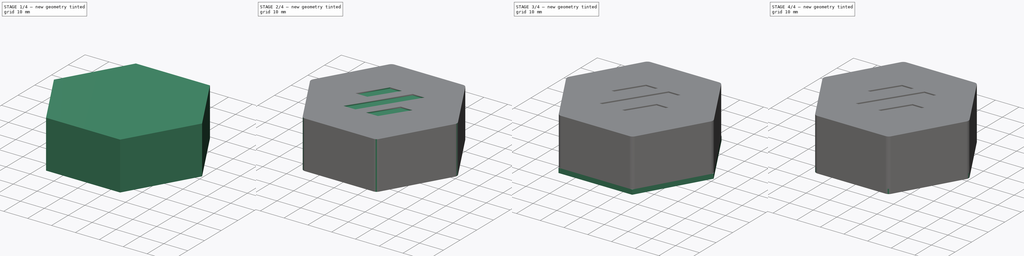
[diagram: build sequence overview — one tinted view per stage of 4, left to right]
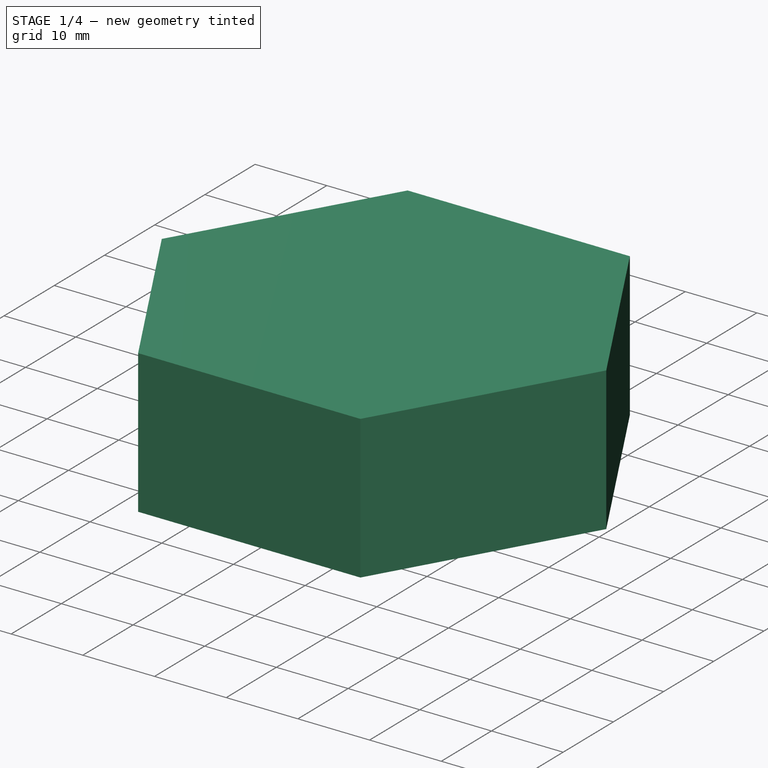
[diagram: stage 1 of 4 — iso view after this stage's code; geometry added in this stage tinted green]
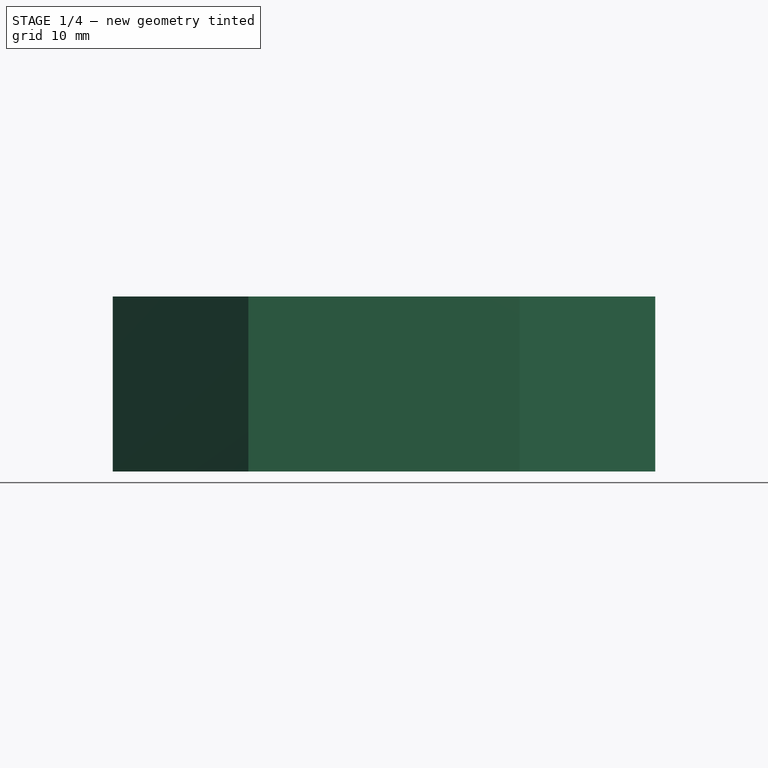
[diagram: stage 1 of 4 — front view after this stage's code; geometry added in this stage tinted green]
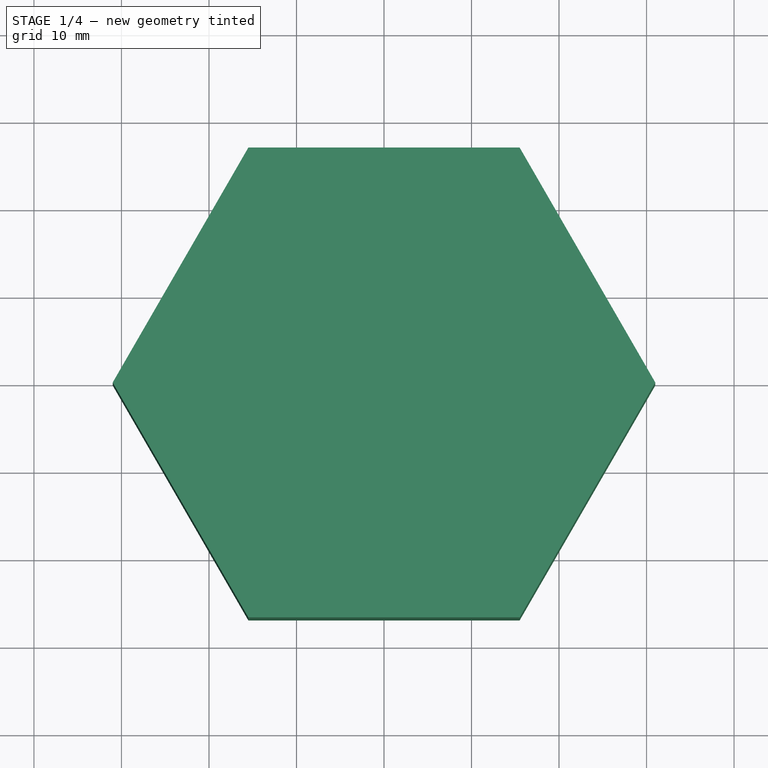
[diagram: stage 1 of 4 — top view after this stage's code; geometry added in this stage tinted green]
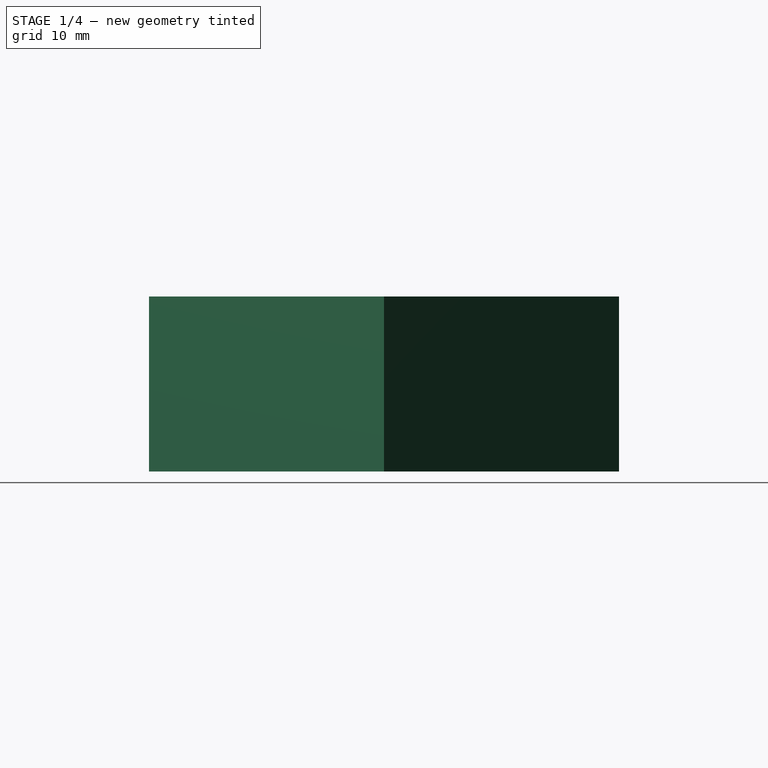
[diagram: stage 1 of 4 — right view after this stage's code; geometry added in this stage tinted green]
FCSTD DOCUMENT  (FreeCAD 0.19R24291 (Git))
Label: nozzlebox
License: All rights reserved
LicenseURL: http://en.wikipedia.org/wiki/All_rights_reserved
objects: Sketcher::SketchObject×9, PartDesign::Pad×5, PartDesign::Pocket×4, PartDesign::Fillet×2, PartDesign::Body×2, PartDesign::PolarPattern×1, PartDesign::Chamfer×1
note: 36 computed .brp shape members not serialized (recipe doc carries the construction recipe); baked Part::Feature solids carry a one-line shape summary decoded from their .brp

FEATURE [Sketcher::SketchObject] Sketch003
  AttachmentOffset = pos=(0,0,2) rot=(0,0,1;0rad)
  FullyConstrained = true
  MapMode = 5
  Placement = pos=(0,0,2) rot=(0,0,1;0rad)
  Support = -> [XY_Plane001]
  sketch-geometry (14):
    g0: LineSegment StartX=31 StartY=0 StartZ=0 EndX=15.5 EndY=26.8468 EndZ=0
    g1: LineSegment StartX=15.5 StartY=26.8468 StartZ=0 EndX=-15.5 EndY=26.8468 EndZ=0
    g2: LineSegment StartX=-15.5 StartY=26.8468 StartZ=0 EndX=-31 EndY=-3.6e-15 EndZ=0
    g3: LineSegment StartX=-31 StartY=-3.6e-15 StartZ=0 EndX=-15.5 EndY=-26.8468 EndZ=0
    g4: LineSegment StartX=-15.5 StartY=-26.8468 StartZ=0 EndX=15.5 EndY=-26.8468 EndZ=0
    g5: LineSegment StartX=15.5 StartY=-26.8468 StartZ=0 EndX=31 EndY=0 EndZ=0
    g6: Circle CenterX=0 CenterY=0 CenterZ=0 NormalX=0 NormalY=0 NormalZ=1 AngleXU=0 Radius=31
    g7: LineSegment StartX=29.15 StartY=0 StartZ=0 EndX=14.575 EndY=25.2446 EndZ=0
    g8: LineSegment StartX=14.575 StartY=25.2446 StartZ=0 EndX=-14.575 EndY=25.2446 EndZ=0
    g9: LineSegment StartX=-14.575 StartY=25.2446 StartZ=0 EndX=-29.15 EndY=3.6e-15 EndZ=0
    g10: LineSegment StartX=-29.15 StartY=3.6e-15 StartZ=0 EndX=-14.575 EndY=-25.2446 EndZ=0
    g11: LineSegment StartX=-14.575 StartY=-25.2446 StartZ=0 EndX=14.575 EndY=-25.2446 EndZ=0
    g12: LineSegment StartX=14.575 StartY=-25.2446 StartZ=0 EndX=29.15 EndY=0 EndZ=0
    g13: Circle CenterX=0 CenterY=0 CenterZ=0 NormalX=0 NormalY=0 NormalZ=1 AngleXU=0 Radius=29.15
  constraints (32):
    c: Coincident(g0,g1)
    c: Coincident(g1,g2)
    c: Coincident(g2,g3)
    c: Coincident(g3,g4)
    c: Coincident(g4,g5)
    c: Coincident(g5,g0)
    c: Equal(g0, g1-g5) x5
    c: PointOnObject(g0,g6)
    c: PointOnObject(g1,g6)
    c: PointOnObject(g2,g6)
    c: PointOnObject(g3,g6)
    c: PointOnObject(g4,g6)
    c: PointOnObject(g5,g6)
    c: Coincident(g6,g-1)
    c: PointOnObject(g5,g-1)
    c: DistanceX(g2,g0) = 62
    c: Coincident(g7,g8)
    c: Coincident(g8,g9)
    c: Coincident(g9,g10)
    c: Coincident(g10,g11)
    c: Coincident(g11,g12)
    c: Coincident(g12,g7)
    c: Equal(g7, g8-g12) x5
    c: PointOnObject(g7,g13)
    c: PointOnObject(g8,g13)
    c: PointOnObject(g9,g13)
    c: PointOnObject(g10,g13)
    c: PointOnObject(g11,g13)
    c: PointOnObject(g12,g13)
    c: Coincident(g13,g-1)
    c: PointOnObject(g12,g-1)
    c: DistanceX(g9,g7) = 58.3
FEATURE [PartDesign::Pad] Pad002
  Direction = (1,1,1)
  Length = 20
  Length2 = 100
  Profile = -> Sketch003
  Type = 0
FEATURE [Sketcher::SketchObject] Sketch004
  AttachmentOffset = pos=(0,0,18) rot=(0,0,1;0rad)
  FullyConstrained = true
  MapMode = 5
  Placement = pos=(0,0,18) rot=(0,0,1;0rad)
  Support = -> [XY_Plane001]
  sketch-geometry (7):
    g0: LineSegment StartX=29.15 StartY=0 StartZ=0 EndX=14.575 EndY=25.2446 EndZ=0
    g1: LineSegment StartX=14.575 StartY=25.2446 StartZ=0 EndX=-14.575 EndY=25.2446 EndZ=0
    g2: LineSegment StartX=-14.575 StartY=25.2446 StartZ=0 EndX=-29.15 EndY=0 EndZ=0
    g3: LineSegment StartX=-29.15 StartY=0 StartZ=0 EndX=-14.575 EndY=-25.2446 EndZ=0
    g4: LineSegment StartX=-14.575 StartY=-25.2446 StartZ=0 EndX=14.575 EndY=-25.2446 EndZ=0
    g5: LineSegment StartX=14.575 StartY=-25.2446 StartZ=0 EndX=29.15 EndY=0 EndZ=0
    g6: Circle CenterX=0 CenterY=0 CenterZ=0 NormalX=0 NormalY=0 NormalZ=1 AngleXU=0 Radius=29.15
  constraints (16):
    c: Coincident(g0,g1)
    c: Coincident(g1,g2)
    c: Coincident(g2,g3)
    c: Coincident(g3,g4)
    c: Coincident(g4,g5)
    c: Coincident(g5,g0)
    c: Equal(g0, g1-g5) x5
    c: PointOnObject(g0,g6)
    c: PointOnObject(g1,g6)
    c: PointOnObject(g2,g6)
    c: PointOnObject(g3,g6)
    c: PointOnObject(g4,g6)
    c: PointOnObject(g5,g6)
    c: Coincident(g6,g-1)
    c: PointOnObject(g5,g-1)
    c: DistanceX(g2,g0) = 58.3
FEATURE [PartDesign::Pad] Pad003
  BaseFeature = -> Pad002
  Direction = (1,1,1)
  Length = 4
  Length2 = 100
  Profile = -> Sketch004
  Refine = true
  Type = 0
FEATURE [PartDesign::Body] Body  label="Bottom"
  Group = -> [Sketch,Pad,Sketch001,Pad001,Sketch002,Pocket,Sketch005,Pocket001,PolarPattern,Fillet,Chamfer]
  Origin = -> Origin
  Tip = -> Chamfer
FEATURE [Sketcher::SketchObject] Sketch006
  AttachmentOffset = pos=(0,0,12) rot=(0,0,1;0rad)
  FullyConstrained = true
  MapMode = 5
  Placement = pos=(0,0,12) rot=(0,0,1;0rad)
  Support = -> [XY_Plane001]
  sketch-geometry (1):
    g0: Circle CenterX=0 CenterY=0 CenterZ=0 NormalX=0 NormalY=0 NormalZ=1 AngleXU=0 Radius=3.1
  constraints (2):
    c: Coincident(g0,g-1)
    c: Diameter(g0) = 6.2
FEATURE [Sketcher::SketchObject] Sketch007
  AttachmentOffset = pos=(0,0,12) rot=(0,0,1;0rad)
  FullyConstrained = true
  MapMode = 5
  Placement = pos=(0,0,12) rot=(0,0,1;0rad)
  Support = -> [XY_Plane001]
  sketch-geometry (1):
    g0: Circle CenterX=0 CenterY=0 CenterZ=0 NormalX=0 NormalY=0 NormalZ=1 AngleXU=0 Radius=4.3
  constraints (2):
    c: Coincident(g0,g-1)
    c: Diameter(g0) = 8.6
FEATURE [PartDesign::Pad] Pad004
  BaseFeature = -> Pad003
  Direction = (1,1,1)
  Length = 6
  Length2 = 100
  Profile = -> Sketch007
  Type = 0
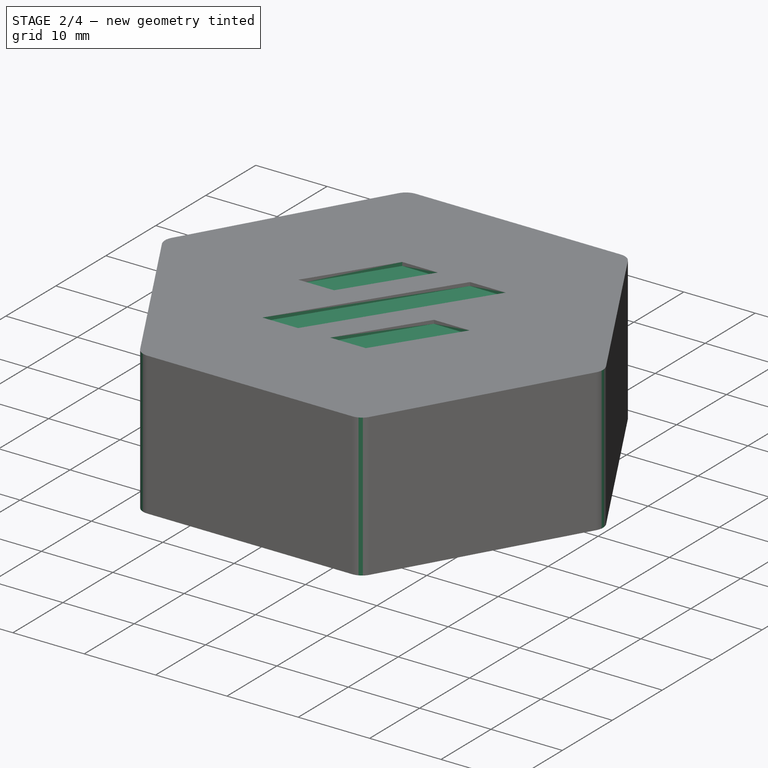
[diagram: stage 2 of 4 — iso view after this stage's code; geometry added in this stage tinted green]
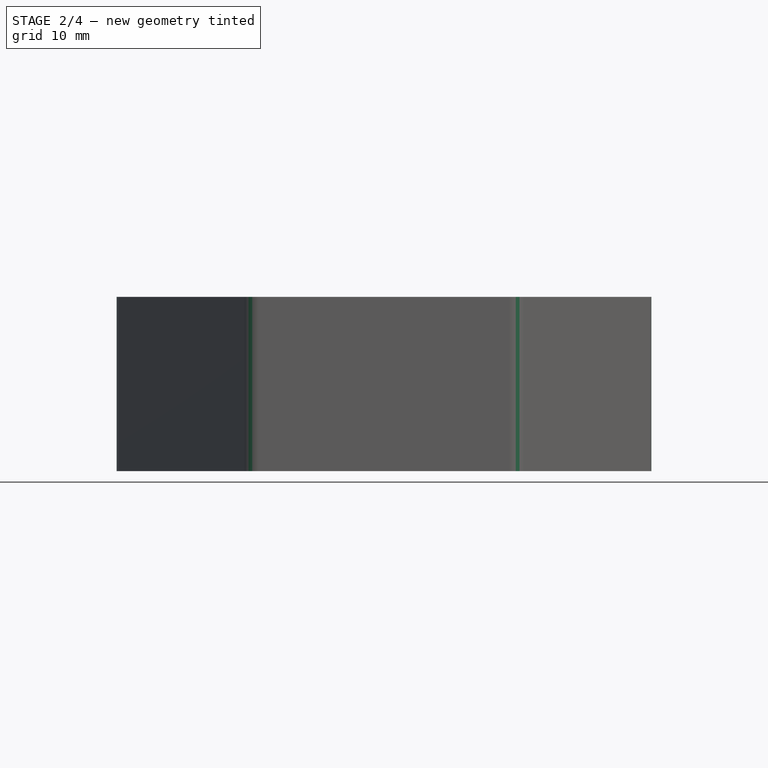
[diagram: stage 2 of 4 — front view after this stage's code; geometry added in this stage tinted green]
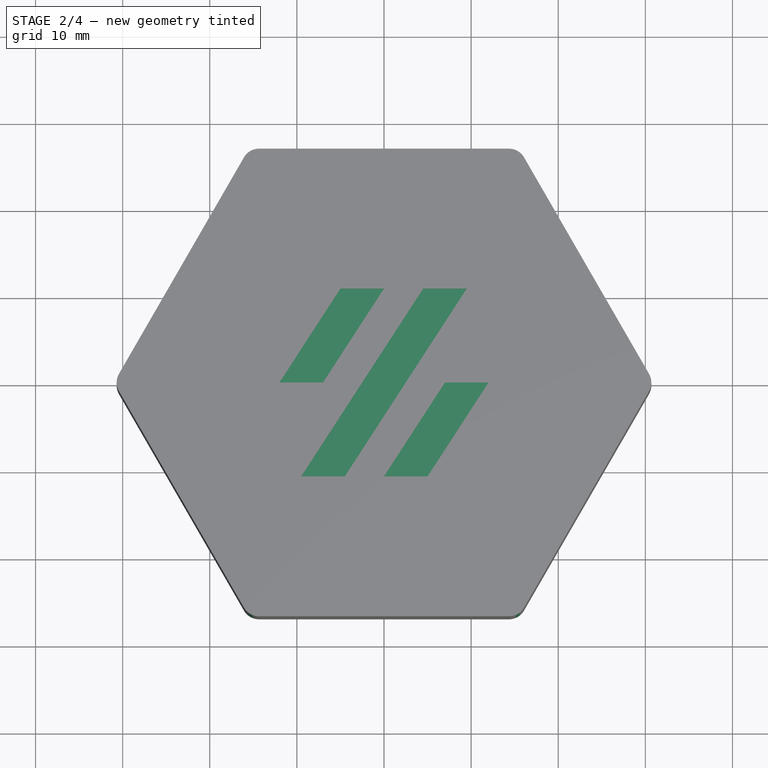
[diagram: stage 2 of 4 — top view after this stage's code; geometry added in this stage tinted green]
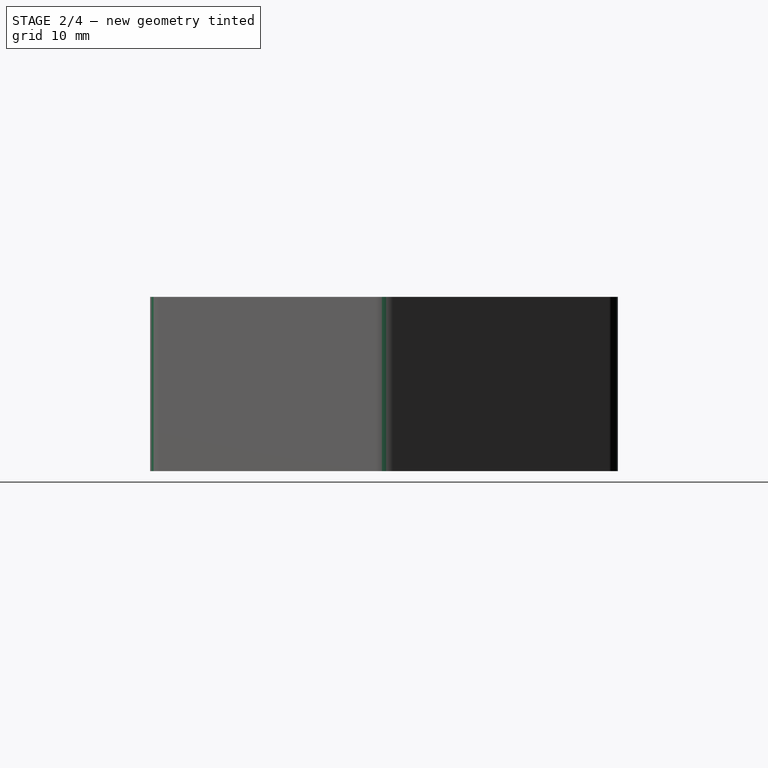
[diagram: stage 2 of 4 — right view after this stage's code; geometry added in this stage tinted green]
FEATURE [PartDesign::Pocket] Pocket002
  BaseFeature = -> Pad004
  Length = 3
  Length2 = 100
  Profile = -> Sketch006
  Reversed = true
  Type = 0
FEATURE [PartDesign::Fillet] Fillet001
  Base = -> Pocket002 [Edge8,Edge2,Edge1,Edge24,Edge5,Edge23]
  BaseFeature = -> Pocket002
  Radius = 2
  SupportTransform = false
FEATURE [Sketcher::SketchObject] Sketch008
  FullyConstrained = false
  MapMode = 5
  Placement = pos=(0,0,22) rot=(0,0,1;0rad)
  Support = -> [Fillet001]
  sketch-geometry (16):
    g0: LineSegment StartX=-12 StartY=0 StartZ=0 EndX=-5 EndY=10.7834 EndZ=0
    g1: LineSegment StartX=-5 StartY=10.7834 StartZ=0 EndX=0 EndY=10.7834 EndZ=0
    g2: LineSegment StartX=0 StartY=10.7834 StartZ=0 EndX=-7 EndY=0 EndZ=0
    g3: LineSegment StartX=-12 StartY=0 StartZ=0 EndX=-7 EndY=0 EndZ=0
    g4: LineSegment StartX=4.5 StartY=10.7834 StartZ=0 EndX=-9.5 EndY=-10.7834 EndZ=0
    g5: LineSegment StartX=-9.5 StartY=-10.7834 StartZ=0 EndX=-4.5 EndY=-10.7834 EndZ=0
    g6: LineSegment StartX=-4.5 StartY=-10.7834 StartZ=0 EndX=9.5 EndY=10.7834 EndZ=0
    g7: LineSegment StartX=4.5 StartY=10.7834 StartZ=0 EndX=9.5 EndY=10.7834 EndZ=0
    g8: LineSegment StartX=7 StartY=0 StartZ=0 EndX=12 EndY=0 EndZ=0
    g9: LineSegment StartX=12 StartY=0 StartZ=0 EndX=5 EndY=-10.7834 EndZ=0
    g10: LineSegment StartX=5 StartY=-10.7834 StartZ=0 EndX=9e-16 EndY=-10.7834 EndZ=0
    g11: LineSegment StartX=7 StartY=0 StartZ=0 EndX=9e-16 EndY=-10.7834 EndZ=0
    g12: LineSegment StartX=0 StartY=10.7834 StartZ=0 EndX=4.5 EndY=10.7834 EndZ=0
    g13: LineSegment StartX=9e-16 StartY=-10.7834 StartZ=0 EndX=-4.5 EndY=-10.7834 EndZ=0
    g14: LineSegment StartX=-7 StartY=0 StartZ=0 EndX=9e-16 EndY=-10.7834 EndZ=0
    g15: LineSegment StartX=7 StartY=0 StartZ=0 EndX=0 EndY=10.7834 EndZ=0
  constraints (43):
    c: Coincident(g1,g0)
    c: Horizontal(g1)
    c: Coincident(g2,g1)
    c: Coincident(g3,g0)
    c: Coincident(g3,g2)
    c: Coincident(g5,g4)
    c: Horizontal(g5)
    c: Coincident(g6,g5)
    c: Coincident(g7,g4)
    c: Coincident(g7,g6)
    c: Horizontal(g7)
    c: Horizontal(g8)
    c: Coincident(g9,g8)
    c: Coincident(g10,g9)
    c: Coincident(g11,g8)
    c: Coincident(g11,g10)
    c: Equal(g1,g7)
    c: Equal(g7,g8)
    c: Equal(g3,g5)
    c: Equal(g5,g10)
    c: Horizontal(g10)
    c: Equal(g8,g10)
    c: Horizontal(g1,g4)
    c: Horizontal(g5,g10)
    c: Coincident(g12,g1)
    c: Coincident(g12,g4)
    c: Coincident(g13,g10)
    c: Coincident(g13,g5)
    c: Equal(g12,g13)
    c: Parallel(g2,g4)
    c: Parallel(g6,g11)
    c: Horizontal(g2,g8)
    c: Horizontal(g3)
    c: Coincident(g14,g2)
    c: Coincident(g14,g10)
    c: Coincident(g15,g8)
    c: Coincident(g15,g1)
    c: Equal(g15,g14)
    c: DistanceX(g1,g1) = 5
    c: PointOnObject(g2,g-1)
    c: PointOnObject(g1,g-2)
    c: PointOnObject(g10,g-2)
    c: DistanceX(g12,g12) = 4.5
FEATURE [PartDesign::Pocket] Pocket003
  BaseFeature = -> Fillet001
  Length = 0.5
  Length2 = 100
  Profile = -> Sketch008
  Type = 0
FEATURE [PartDesign::Body] Body001  label="Top"
  Group = -> [Sketch003,Pad002,Sketch004,Pad003,Sketch007,Pad004,Sketch006,Pocket002,Fillet001,Sketch008,Pocket003]
  Origin = -> Origin001
  Tip = -> Pocket003
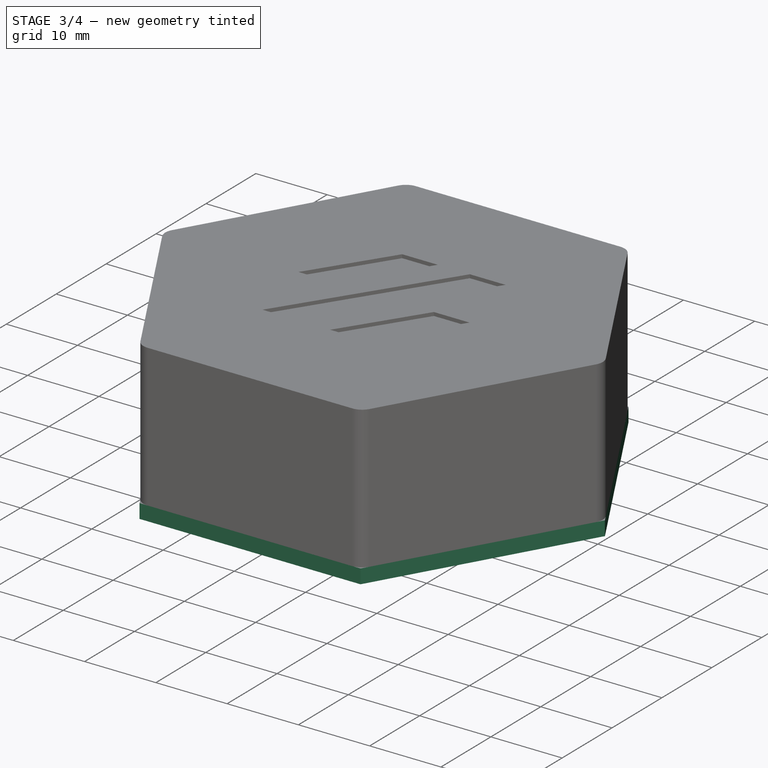
[diagram: stage 3 of 4 — iso view after this stage's code; geometry added in this stage tinted green]
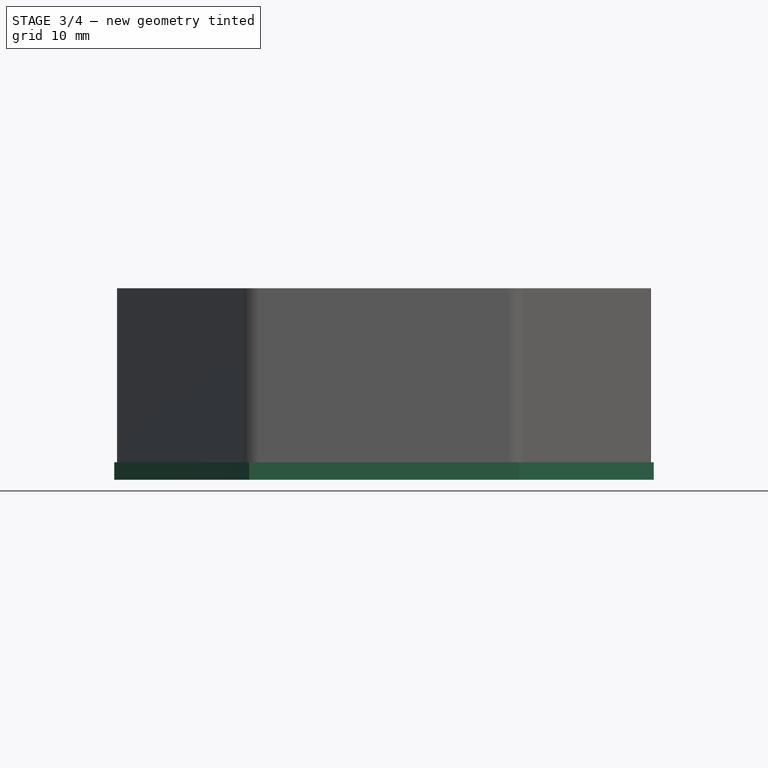
[diagram: stage 3 of 4 — front view after this stage's code; geometry added in this stage tinted green]
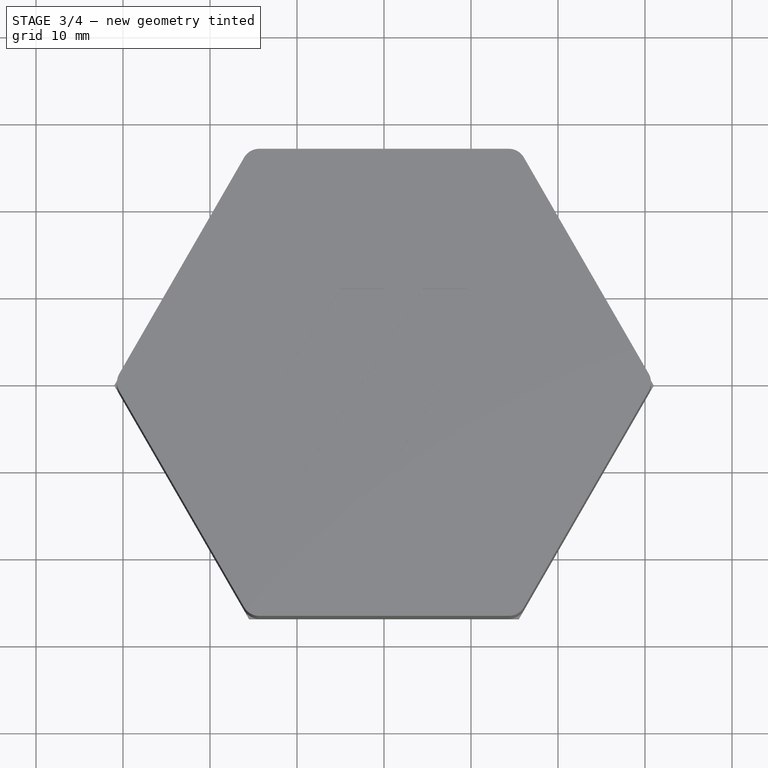
[diagram: stage 3 of 4 — top view after this stage's code; geometry added in this stage tinted green]
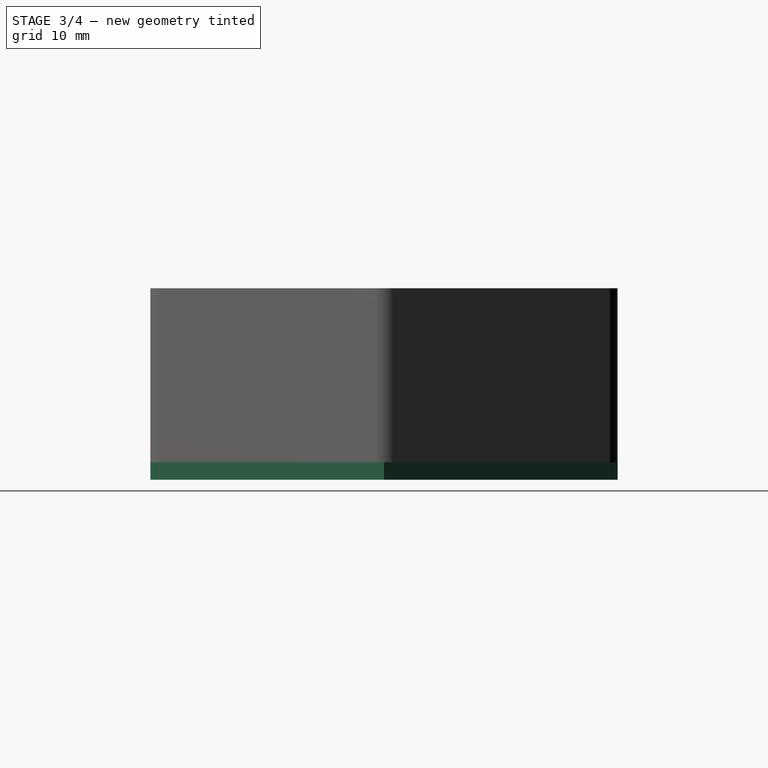
[diagram: stage 3 of 4 — right view after this stage's code; geometry added in this stage tinted green]
FEATURE [Sketcher::SketchObject] Sketch
  FullyConstrained = true
  MapMode = 5
  Support = -> [XY_Plane]
  sketch-geometry (7):
    g0: LineSegment StartX=31 StartY=0 StartZ=0 EndX=15.5 EndY=26.8468 EndZ=0
    g1: LineSegment StartX=15.5 StartY=26.8468 StartZ=0 EndX=-15.5 EndY=26.8468 EndZ=0
    g2: LineSegment StartX=-15.5 StartY=26.8468 StartZ=0 EndX=-31 EndY=0 EndZ=0
    g3: LineSegment StartX=-31 StartY=0 StartZ=0 EndX=-15.5 EndY=-26.8468 EndZ=0
    g4: LineSegment StartX=-15.5 StartY=-26.8468 StartZ=0 EndX=15.5 EndY=-26.8468 EndZ=0
    g5: LineSegment StartX=15.5 StartY=-26.8468 StartZ=0 EndX=31 EndY=0 EndZ=0
    g6: Circle CenterX=0 CenterY=0 CenterZ=0 NormalX=0 NormalY=0 NormalZ=1 AngleXU=0 Radius=31
  constraints (16):
    c: Coincident(g0,g1)
    c: Coincident(g1,g2)
    c: Coincident(g2,g3)
    c: Coincident(g3,g4)
    c: Coincident(g4,g5)
    c: Coincident(g5,g0)
    c: Equal(g0, g1-g5) x5
    c: PointOnObject(g0,g6)
    c: PointOnObject(g1,g6)
    c: PointOnObject(g2,g6)
    c: PointOnObject(g3,g6)
    c: PointOnObject(g4,g6)
    c: PointOnObject(g5,g6)
    c: Coincident(g6,g-1)
    c: PointOnObject(g5,g-1)
    c: DistanceX(g2,g0) = 62
FEATURE [PartDesign::Pad] Pad
  Direction = (1,1,1)
  Length = 2
  Length2 = 100
  Profile = -> Sketch
  Type = 0
FEATURE [Sketcher::SketchObject] Sketch001
  FullyConstrained = true
  MapMode = 5
  Support = -> [XY_Plane]
  sketch-geometry (7):
    g0: LineSegment StartX=29 StartY=0 StartZ=0 EndX=14.5 EndY=25.1147 EndZ=0
    g1: LineSegment StartX=14.5 StartY=25.1147 StartZ=0 EndX=-14.5 EndY=25.1147 EndZ=0
    g2: LineSegment StartX=-14.5 StartY=25.1147 StartZ=0 EndX=-29 EndY=-3.6e-15 EndZ=0
    g3: LineSegment StartX=-29 StartY=-3.6e-15 StartZ=0 EndX=-14.5 EndY=-25.1147 EndZ=0
    g4: LineSegment StartX=-14.5 StartY=-25.1147 StartZ=0 EndX=14.5 EndY=-25.1147 EndZ=0
    g5: LineSegment StartX=14.5 StartY=-25.1147 StartZ=0 EndX=29 EndY=0 EndZ=0
    g6: Circle CenterX=0 CenterY=0 CenterZ=0 NormalX=0 NormalY=0 NormalZ=1 AngleXU=0 Radius=29
  constraints (16):
    c: Coincident(g0,g1)
    c: Coincident(g1,g2)
    c: Coincident(g2,g3)
    c: Coincident(g3,g4)
    c: Coincident(g4,g5)
    c: Coincident(g5,g0)
    c: Equal(g0, g1-g5) x5
    c: PointOnObject(g0,g6)
    c: PointOnObject(g1,g6)
    c: PointOnObject(g2,g6)
    c: PointOnObject(g3,g6)
    c: PointOnObject(g4,g6)
    c: PointOnObject(g5,g6)
    c: Coincident(g6,g-1)
    c: PointOnObject(g5,g-1)
    c: DistanceX(g2,g0) = 58
FEATURE [PartDesign::Pad] Pad001
  BaseFeature = -> Pad
  Direction = (1,1,1)
  Length = 12
  Length2 = 100
  Profile = -> Sketch001
  Type = 0
FEATURE [Sketcher::SketchObject] Sketch002
  AttachmentOffset = pos=(0,0,9) rot=(0,0,1;0rad)
  FullyConstrained = true
  MapMode = 5
  Placement = pos=(0,0,9) rot=(0,0,1;0rad)
  Support = -> [XY_Plane]
  sketch-geometry (1):
    g0: Circle CenterX=0 CenterY=0 CenterZ=0 NormalX=0 NormalY=0 NormalZ=1 AngleXU=0 Radius=3.1
  constraints (2):
    c: Coincident(g0,g-1)
    c: Diameter(g0) = 6.2
FEATURE [PartDesign::Pocket] Pocket
  BaseFeature = -> Pad001
  Length = 3
  Length2 = 100
  Profile = -> Sketch002
  Reversed = true
  Type = 0
FEATURE [Sketcher::SketchObject] Sketch005
  AttachmentOffset = pos=(0,0,12) rot=(0,0,1;0rad)
  FullyConstrained = true
  MapMode = 5
  Placement = pos=(0,0,12) rot=(0,0,1;0rad)
  Support = -> [XY_Plane]
  sketch-geometry (5):
    g0: Circle CenterX=9.5 CenterY=0 CenterZ=0 NormalX=0 NormalY=0 NormalZ=1 AngleXU=0 Radius=3.1
    g1: Circle CenterX=20 CenterY=0 CenterZ=0 NormalX=0 NormalY=0 NormalZ=1 AngleXU=0 Radius=3.1
    g2: Circle CenterX=17.3205 CenterY=10 CenterZ=0 NormalX=0 NormalY=0 NormalZ=1 AngleXU=0 Radius=3.1
    g3: LineSegment StartX=17.3205 StartY=10 StartZ=0 EndX=0 EndY=0 EndZ=0
    g4: LineSegment StartX=0 StartY=0 StartZ=0 EndX=20 EndY=0 EndZ=0
  constraints (13):
    c: PointOnObject(g0,g-1)
    c: DistanceX(g-1,g0) = 9.5
    c: Diameter(g0) = 6.2
    c: PointOnObject(g1,g-1)
    c: Equal(g1,g0)
    c: Equal(g2,g1)
    c: Coincident(g3,g2)
    c: Coincident(g3,g-1)
    c: Coincident(g4,g-1)
    c: Coincident(g4,g1)
    c: Equal(g3,g4)
    c: Angle(g4,g3) = 0.523599
    c: DistanceX(g4,g4) = 20
FEATURE [PartDesign::Pocket] Pocket001
  BaseFeature = -> Pocket
  Length = 10
  Length2 = 100
  Profile = -> Sketch005
  Type = 0
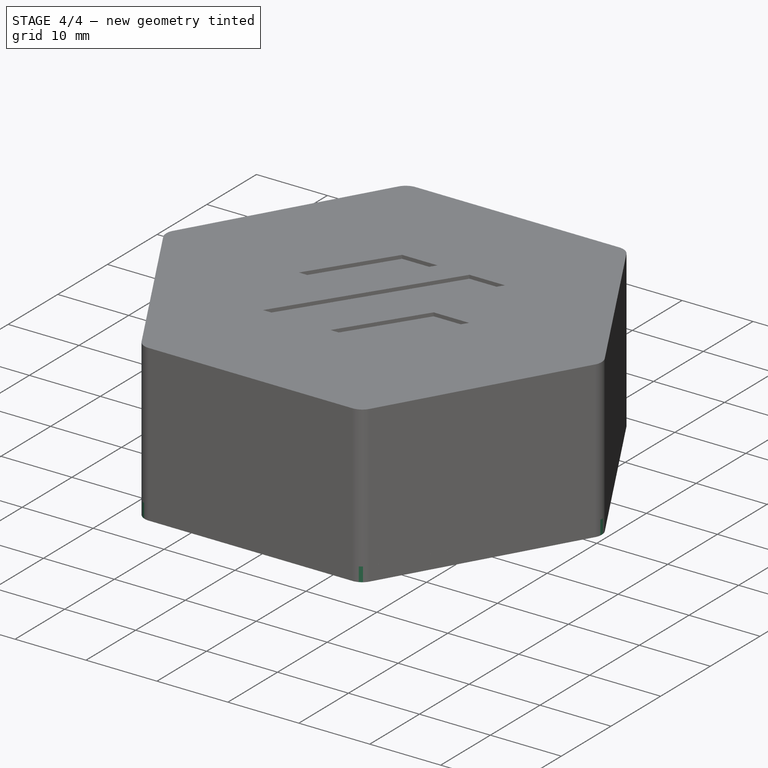
[diagram: stage 4 of 4 — iso view after this stage's code; geometry added in this stage tinted green]
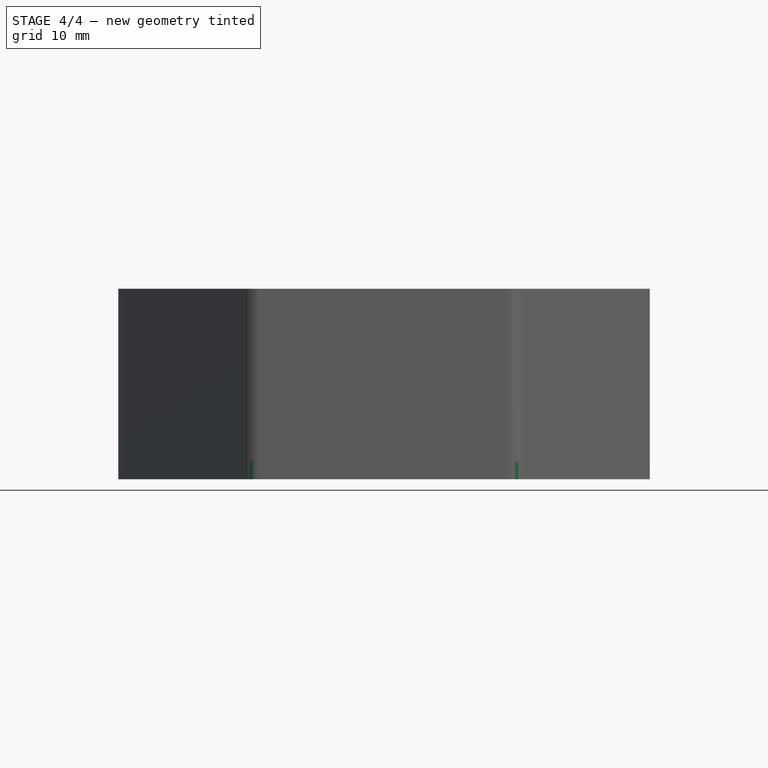
[diagram: stage 4 of 4 — front view after this stage's code; geometry added in this stage tinted green]
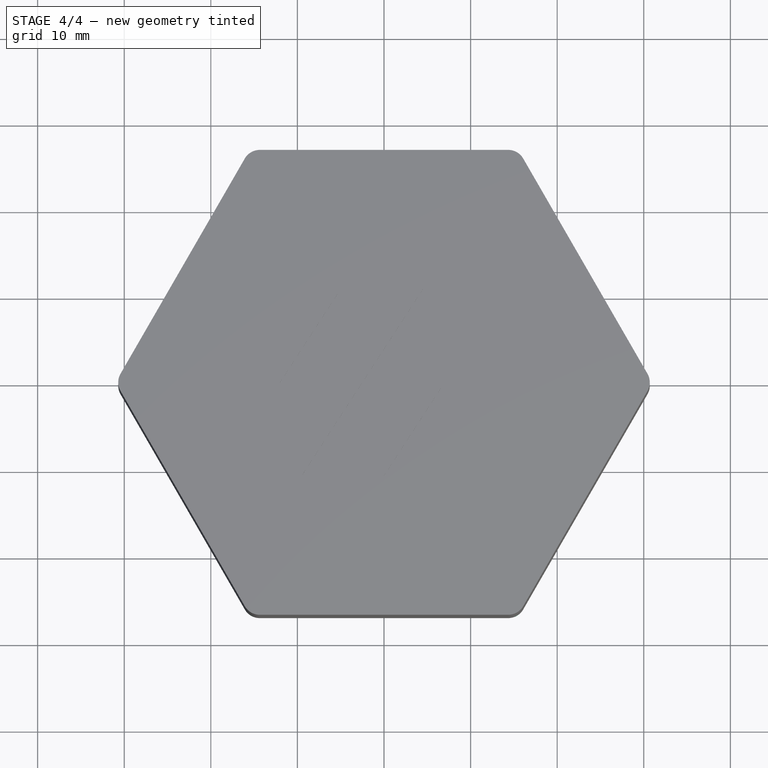
[diagram: stage 4 of 4 — top view after this stage's code; geometry added in this stage tinted green]
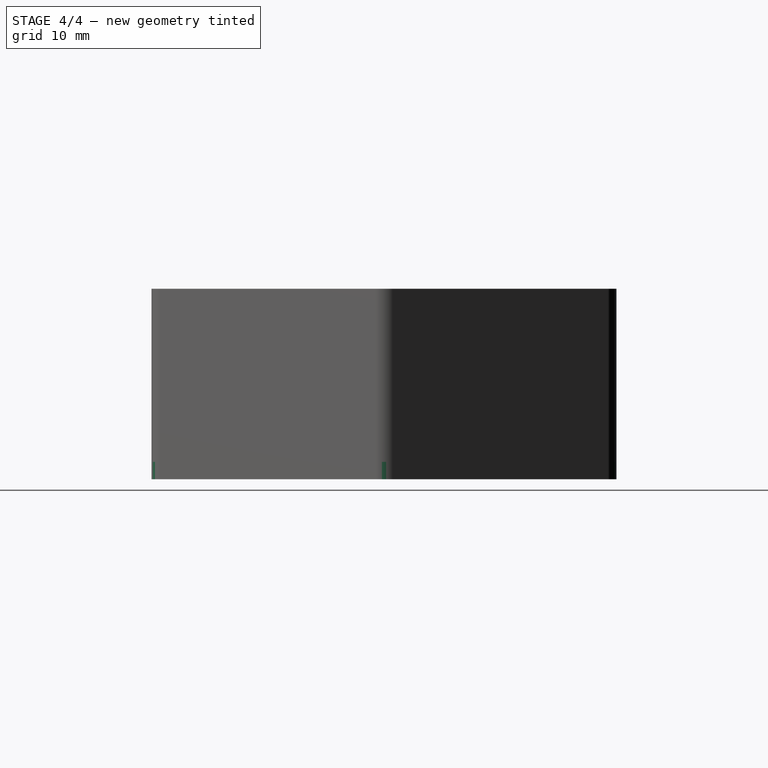
[diagram: stage 4 of 4 — right view after this stage's code; geometry added in this stage tinted green]
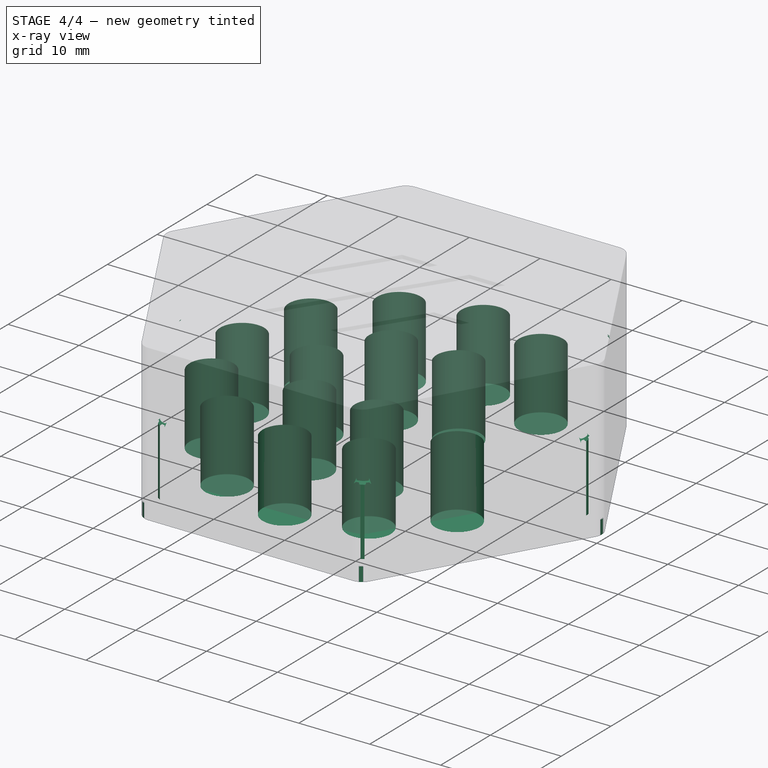
[diagram: stage 4 of 4 — x-ray composite at the iso view; earlier geometry ghosted, this stage's added geometry solid]
FEATURE [PartDesign::PolarPattern] PolarPattern
  Angle = 360
  Axis = -> Sketch005 [N_Axis]
  BaseFeature = -> Pocket001
  Occurrences = 6
  Originals = -> [Pocket001]
FEATURE [PartDesign::Fillet] Fillet
  Base = -> PolarPattern [Edge38,Edge36,Edge40,Edge33,Edge31,Edge34,Edge8,Edge2,Edge30,Edge29,Edge5,Edge1]
  BaseFeature = -> PolarPattern
  Radius = 2
  SupportTransform = false
FEATURE [PartDesign::Chamfer] Chamfer
  Angle = 45
  Base = -> Fillet [Edge78,Edge75,Edge71,Edge67,Edge63,Edge59,Edge57,Edge61,Edge65,Edge69,Edge73,Edge77]
  BaseFeature = -> Fillet
  ChamferType = 0
  FlipDirection = false
  Refine = true
  Size = 0.5
  Size2 = 1
  SupportTransform = false
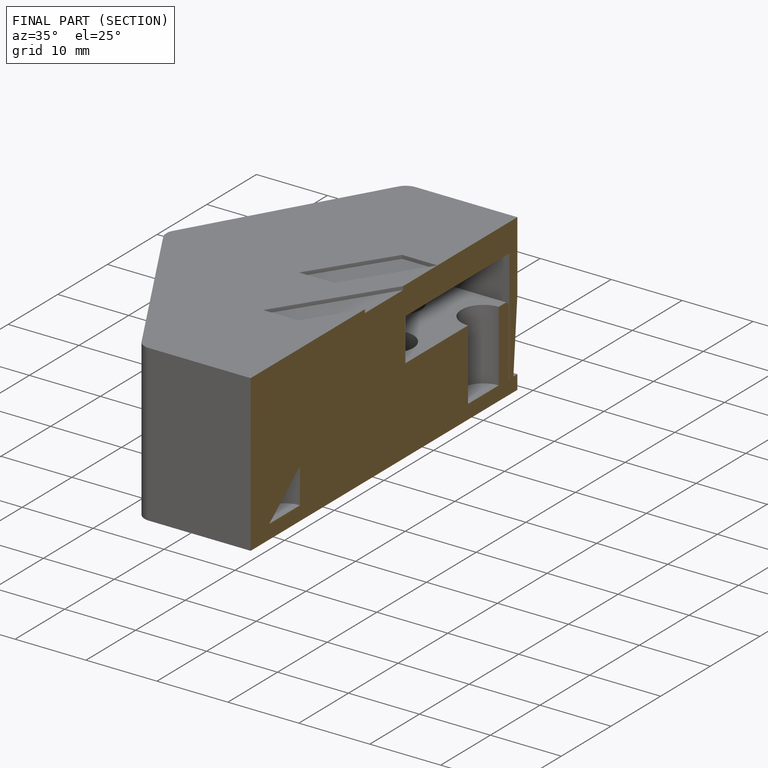
[diagram: finished part — half-section view (interior)]
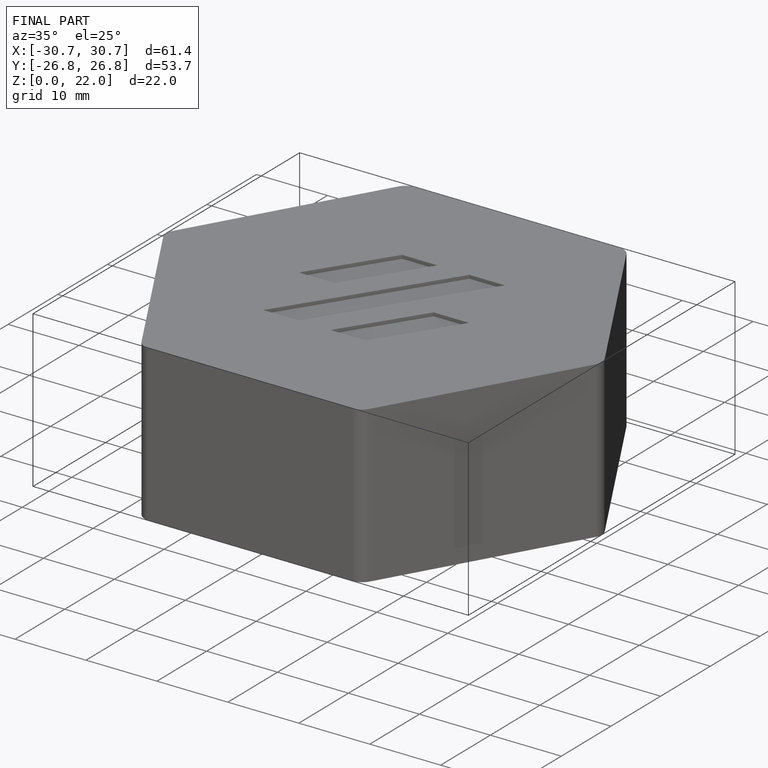
[diagram: finished part — iso view with bounding-box wireframe]
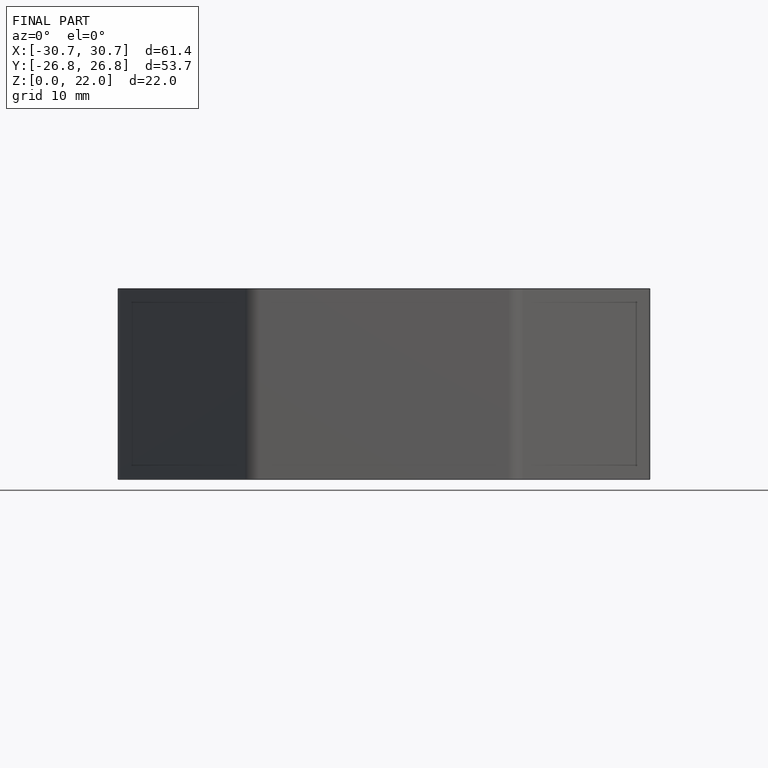
[diagram: finished part — front view with bounding-box wireframe]
